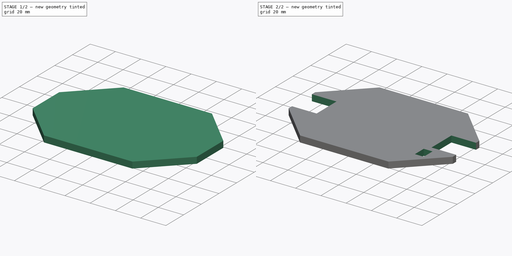
[diagram: build sequence overview — one tinted view per stage of 2, left to right]
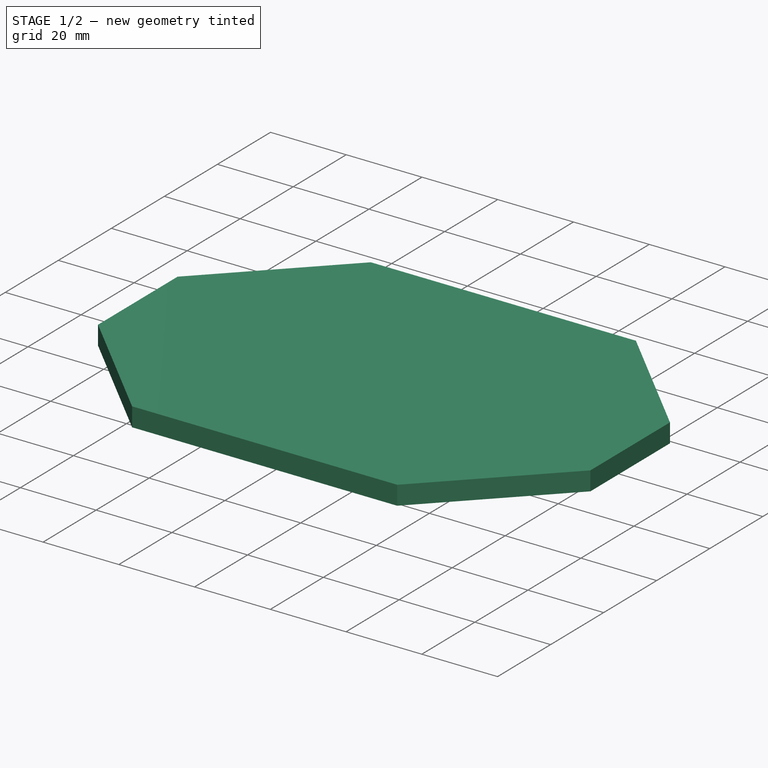
[diagram: stage 1 of 2 — iso view after this stage's code; geometry added in this stage tinted green]
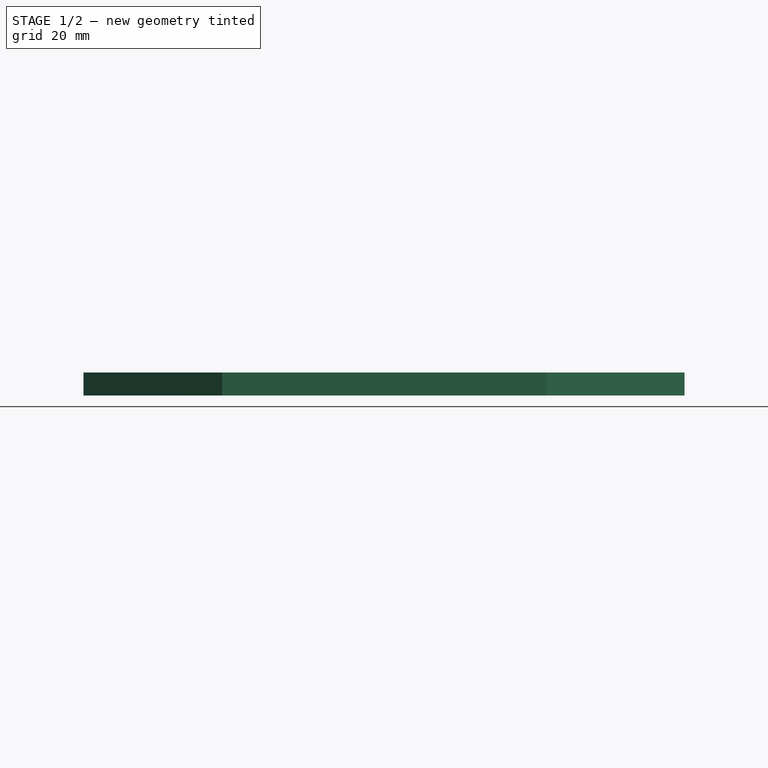
[diagram: stage 1 of 2 — front view after this stage's code; geometry added in this stage tinted green]
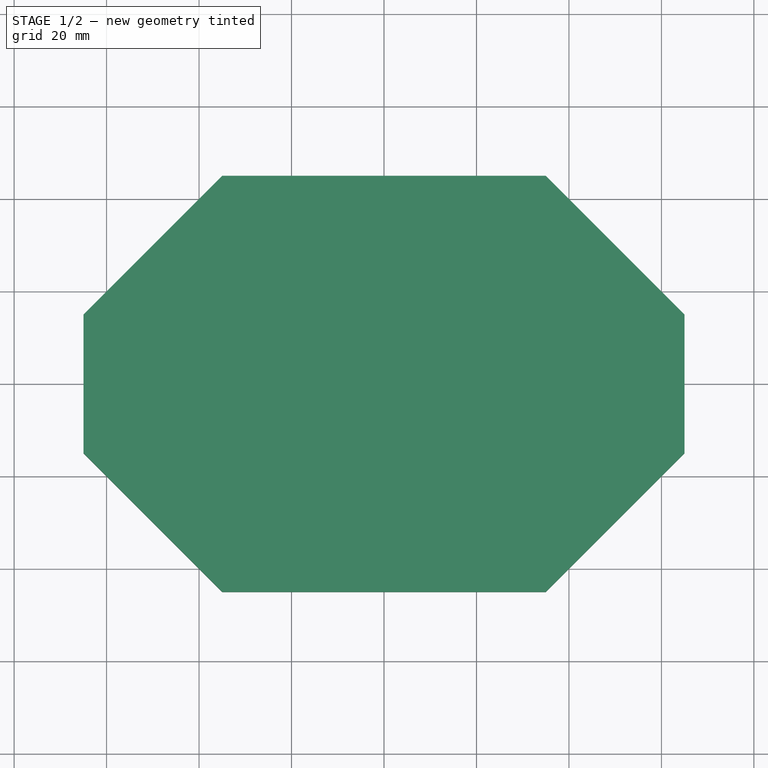
[diagram: stage 1 of 2 — top view after this stage's code; geometry added in this stage tinted green]
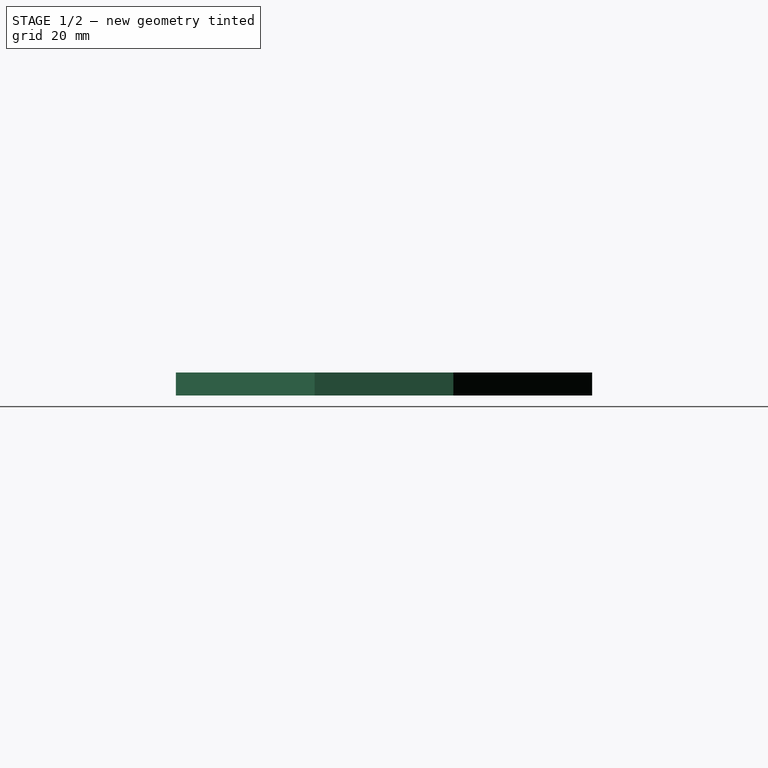
[diagram: stage 1 of 2 — right view after this stage's code; geometry added in this stage tinted green]
FCSTD DOCUMENT  (FreeCAD 0.21R33771 (Git))
Label: archivos_base_PenInv
License: All rights reserved
LicenseURL: https://en.wikipedia.org/wiki/All_rights_reserved
objects: Sketcher::SketchObject×3, PartDesign::Pocket×2, PartDesign::Pad×1, PartDesign::Chamfer×1, PartDesign::Body×1
note: 12 computed .brp shape members not serialized (recipe doc carries the construction recipe); baked Part::Feature solids carry a one-line shape summary decoded from their .brp

FEATURE [Sketcher::SketchObject] Sketch
  FullyConstrained = true
  MapMode = 5
  Support = -> [XY_Plane]
  sketch-geometry (4):
    g0: LineSegment StartX=-65 StartY=45 StartZ=0 EndX=65 EndY=45 EndZ=0
    g1: LineSegment StartX=65 StartY=45 StartZ=0 EndX=65 EndY=-45 EndZ=0
    g2: LineSegment StartX=65 StartY=-45 StartZ=0 EndX=-65 EndY=-45 EndZ=0
    g3: LineSegment StartX=-65 StartY=-45 StartZ=0 EndX=-65 EndY=45 EndZ=0
  constraints (12):
    c: Coincident(g0,g1)
    c: Coincident(g1,g2)
    c: Coincident(g2,g3)
    c: Coincident(g3,g0)
    c: Horizontal(g0)
    c: Horizontal(g2)
    c: Vertical(g1)
    c: Vertical(g3)
    c: Distance(g0,g0) = 130
    c: Distance(g0,g2) = 90
    c: Distance(g-1,g2) = 45
    c: Distance(g-1,g3) = 65
FEATURE [PartDesign::Pad] Pad
  Direction = (0,0,1)
  Length = 5
  Length2 = 10
  Profile = -> Sketch
  ReferenceAxis = -> Sketch [N_Axis]
  Type = 0
FEATURE [PartDesign::Chamfer] Chamfer
  Angle = 45
  Base = -> Pad [Edge8,Edge5,Edge2,Edge1]
  BaseFeature = -> Pad
  ChamferType = 0
  FlipDirection = false
  Size = 30
  Size2 = 1
  SupportTransform = false
  UseAllEdges = false
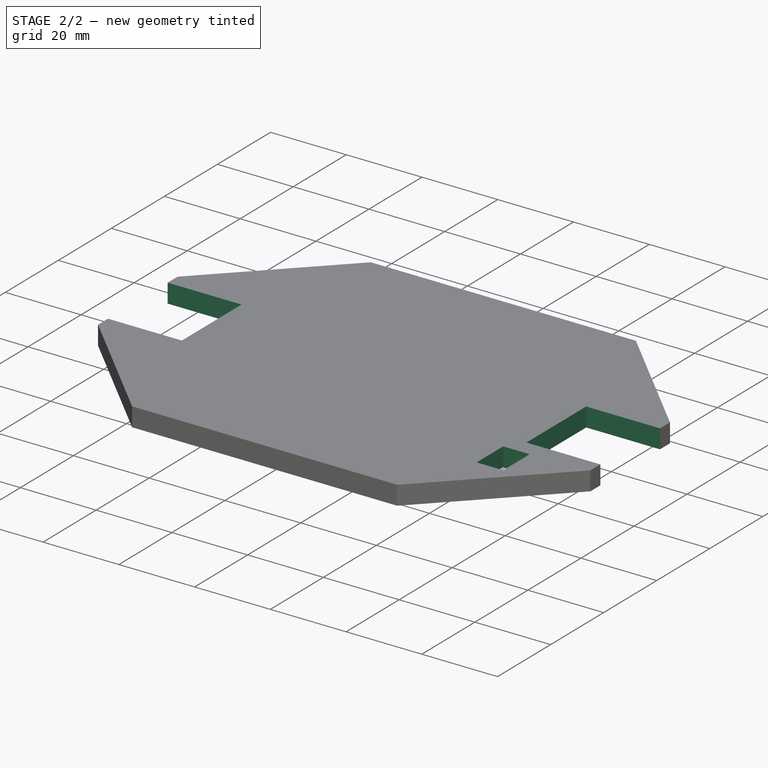
[diagram: stage 2 of 2 — iso view after this stage's code; geometry added in this stage tinted green]
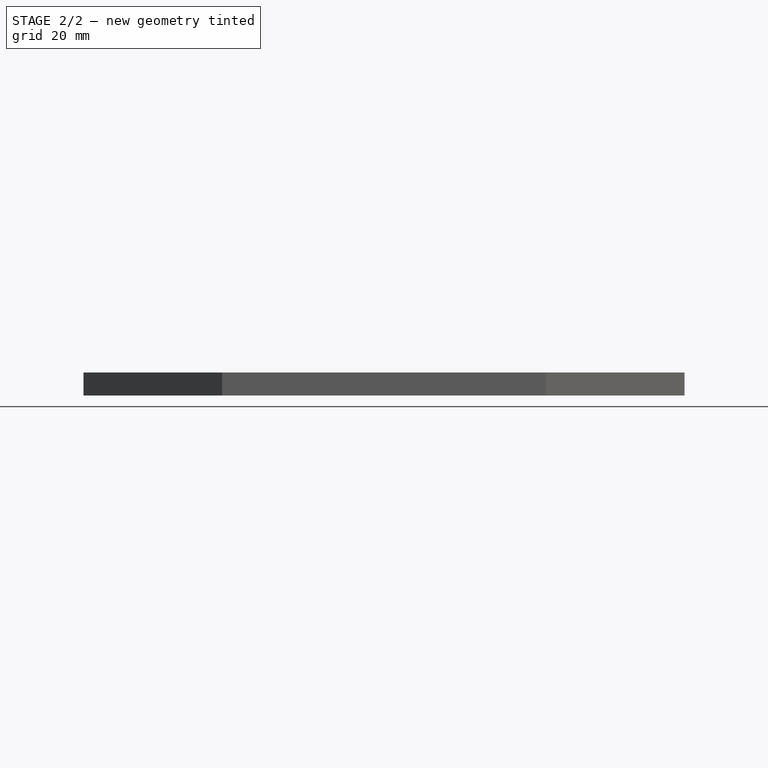
[diagram: stage 2 of 2 — front view after this stage's code; geometry added in this stage tinted green]
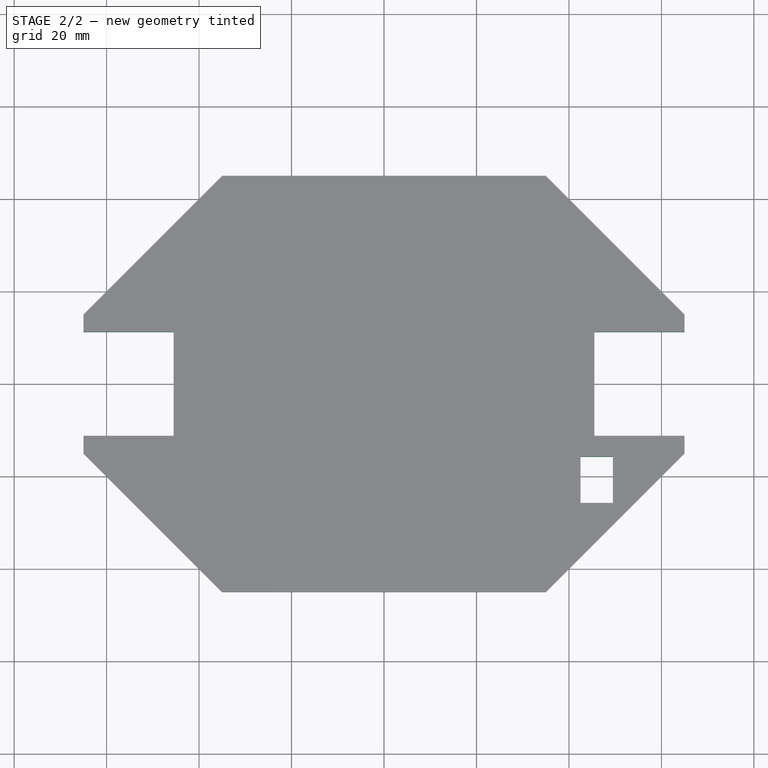
[diagram: stage 2 of 2 — top view after this stage's code; geometry added in this stage tinted green]
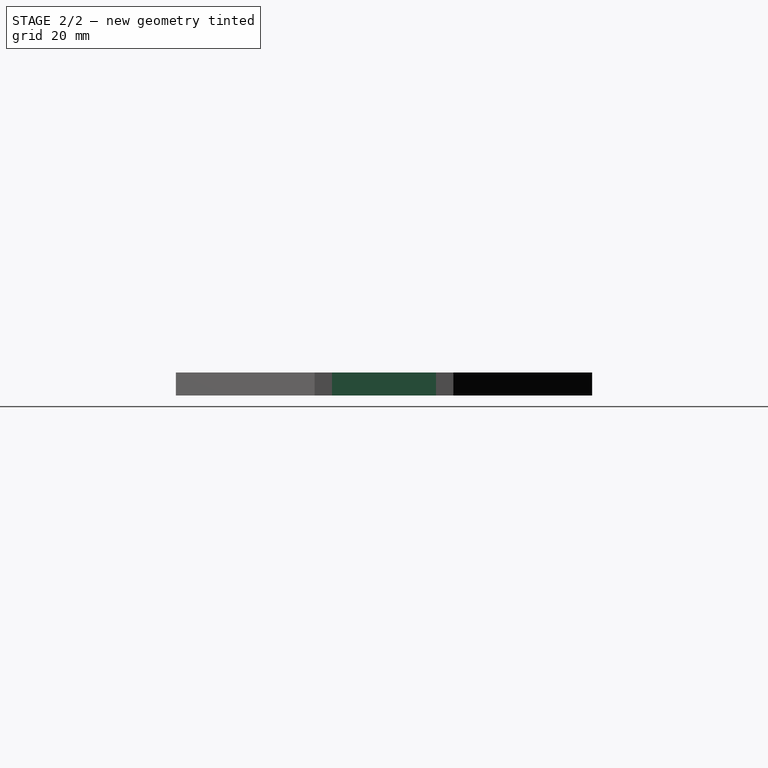
[diagram: stage 2 of 2 — right view after this stage's code; geometry added in this stage tinted green]
FEATURE [Sketcher::SketchObject] Sketch001
  ExternalGeometry = -> [Chamfer]
  FullyConstrained = true
  MapMode = 5
  Placement = pos=(0,0,5) rot=(0,0,1;0rad)
  Support = -> [Chamfer]
  sketch-geometry (16):
    g0: LineSegment StartX=-65 StartY=11.25 StartZ=0 EndX=-45.5 EndY=11.25 EndZ=0
    g1: LineSegment StartX=-45.5 StartY=11.25 StartZ=0 EndX=-45.5 EndY=-11.25 EndZ=0
    g2: LineSegment StartX=-45.5 StartY=-11.25 StartZ=0 EndX=-65 EndY=-11.25 EndZ=0
    g3: LineSegment StartX=-65 StartY=-11.25 StartZ=0 EndX=-65 EndY=11.25 EndZ=0
    g4: LineSegment StartX=45.5 StartY=11.25 StartZ=0 EndX=65 EndY=11.25 EndZ=0
    g5: LineSegment StartX=65 StartY=11.25 StartZ=0 EndX=65 EndY=-11.25 EndZ=0
    g6: LineSegment StartX=65 StartY=-11.25 StartZ=0 EndX=45.5 EndY=-11.25 EndZ=0
    g7: LineSegment StartX=45.5 StartY=-11.25 StartZ=0 EndX=45.5 EndY=11.25 EndZ=0
    g8: LineSegment StartX=45.5 StartY=11.25 StartZ=0 EndX=65 EndY=11.25 EndZ=0
    g9: LineSegment StartX=65 StartY=11.25 StartZ=0 EndX=65 EndY=-11.25 EndZ=0
    g10: LineSegment StartX=65 StartY=-11.25 StartZ=0 EndX=45.5 EndY=-11.25 EndZ=0
    g11: LineSegment StartX=45.5 StartY=-11.25 StartZ=0 EndX=45.5 EndY=11.25 EndZ=0
    g12: LineSegment StartX=-65 StartY=11.25 StartZ=0 EndX=-45.5 EndY=11.25 EndZ=0
    g13: LineSegment StartX=-45.5 StartY=11.25 StartZ=0 EndX=-45.5 EndY=-11.25 EndZ=0
    g14: LineSegment StartX=-45.5 StartY=-11.25 StartZ=0 EndX=-65 EndY=-11.25 EndZ=0
    g15: LineSegment StartX=-65 StartY=-11.25 StartZ=0 EndX=-65 EndY=11.25 EndZ=0
  constraints (44):
    c: Coincident(g0,g1)
    c: Coincident(g1,g2)
    c: Coincident(g2,g3)
    c: Coincident(g3,g0)
    c: Horizontal(g0)
    c: Horizontal(g2)
    c: Vertical(g1)
    c: Vertical(g3)
    c: PointOnObject(g0,g-3)
    c: Distance(g0) = 19.5
    c: Distance(g1) = 22.5
    c: Distance(g2,g-1) = 11.25
    c: Coincident(g4,g5)
    c: Coincident(g5,g6)
    c: Coincident(g6,g7)
    c: Coincident(g7,g4)
    c: Horizontal(g4)
    c: Horizontal(g6)
    c: Vertical(g5)
    c: Vertical(g7)
    c: PointOnObject(g5,g-7)
    c: Distance(g7) = 22.5
    c: Distance(g4) = 19.5
    c: Distance(g5,g-1) = 11.25
    c: Coincident(g8,g9)
    c: Coincident(g9,g10)
    c: Coincident(g10,g11)
    c: Coincident(g11,g8)
    c: Horizontal(g8)
    c: Horizontal(g10)
    c: Vertical(g9)
    c: Vertical(g11)
    c: Coincident(g8,g4)
    c: Coincident(g9,g5)
    c: Coincident(g12,g13)
    c: Coincident(g13,g14)
    c: Coincident(g14,g15)
    c: Coincident(g15,g12)
    c: Horizontal(g12)
    c: Horizontal(g14)
    c: Vertical(g13)
    c: Vertical(g15)
    c: Coincident(g12,g0)
    c: Coincident(g13,g1)
FEATURE [PartDesign::Pocket] Pocket
  BaseFeature = -> Chamfer
  Direction = (0,0,-1)
  Length = 5
  Length2 = 5
  Profile = -> Sketch001
  ReferenceAxis = -> Sketch001 [N_Axis]
  Type = 0
FEATURE [Sketcher::SketchObject] Sketch002
  FullyConstrained = false
  MapMode = 5
  Placement = pos=(0,0,5) rot=(0,0,1;0rad)
  Support = -> [Pocket]
  sketch-geometry (8):
    g0: LineSegment StartX=-36.5 StartY=29 StartZ=0 EndX=36.5 EndY=29 EndZ=0
    g1: LineSegment StartX=36.5 StartY=29 StartZ=0 EndX=36.5 EndY=-29 EndZ=0
    g2: LineSegment StartX=36.5 StartY=-29 StartZ=0 EndX=-36.5 EndY=-29 EndZ=0
    g3: LineSegment StartX=-36.5 StartY=-29 StartZ=0 EndX=-36.5 EndY=29 EndZ=0
    g4: LineSegment StartX=42.5 StartY=-15.7445 StartZ=0 EndX=49.5 EndY=-15.7445 EndZ=0
    g5: LineSegment StartX=49.5 StartY=-15.7445 StartZ=0 EndX=49.5 EndY=-25.7445 EndZ=0
    g6: LineSegment StartX=49.5 StartY=-25.7445 StartZ=0 EndX=42.5 EndY=-25.7445 EndZ=0
    g7: LineSegment StartX=42.5 StartY=-25.7445 StartZ=0 EndX=42.5 EndY=-15.7445 EndZ=0
  constraints (23):
    c: Coincident(g0,g1)
    c: Coincident(g1,g2)
    c: Coincident(g2,g3)
    c: Coincident(g3,g0)
    c: Horizontal(g0)
    c: Horizontal(g2)
    c: Vertical(g1)
    c: Vertical(g3)
    c: Distance(g0) = 73
    c: Distance(g1) = 58
    c: DistanceX(g-1,g1) = 36.5
    c: DistanceY(g2,g-1) = 29
    c: Coincident(g4,g5)
    c: Coincident(g5,g6)
    c: Coincident(g6,g7)
    c: Coincident(g7,g4)
    c: Horizontal(g4)
    c: Horizontal(g6)
    c: Vertical(g5)
    c: Vertical(g7)
    c: DistanceX(g4,g4) = 7
    c: DistanceY(g7,g7) = 10
    c: DistanceX(g1,g4) = 6
FEATURE [PartDesign::Pocket] Pocket001
  BaseFeature = -> Pocket
  Direction = (0,0,-1)
  Length = 5
  Length2 = 5
  Profile = -> Sketch002
  ReferenceAxis = -> Sketch002 [N_Axis]
  Type = 0
FEATURE [PartDesign::Body] Body  label="Cuerpo"
  Group = -> [Sketch,Pad,Chamfer,Sketch001,Pocket,Sketch002,Pocket001]
  Origin = -> Origin
  Tip = -> Pocket001
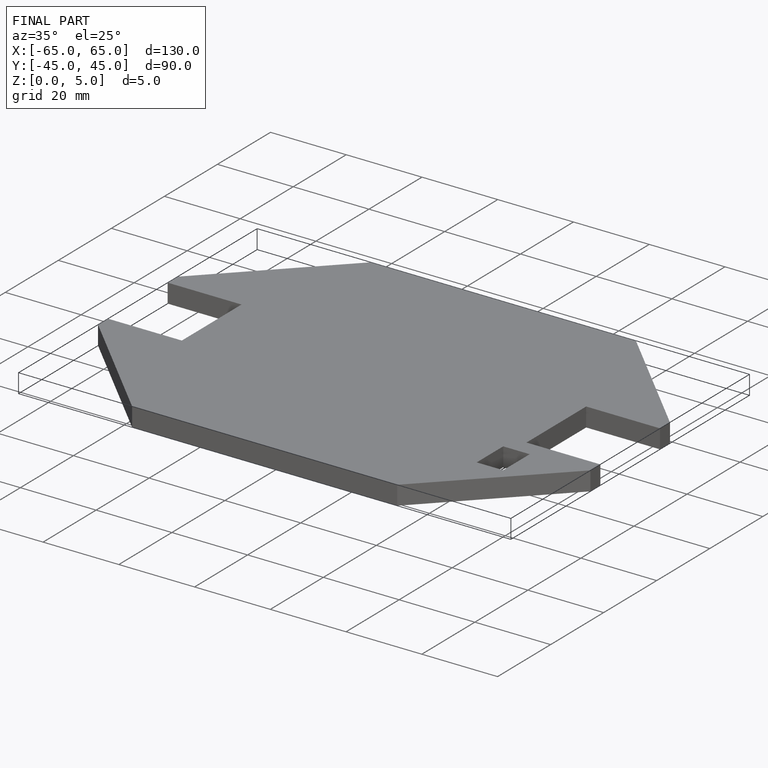
[diagram: finished part — iso view with bounding-box wireframe]
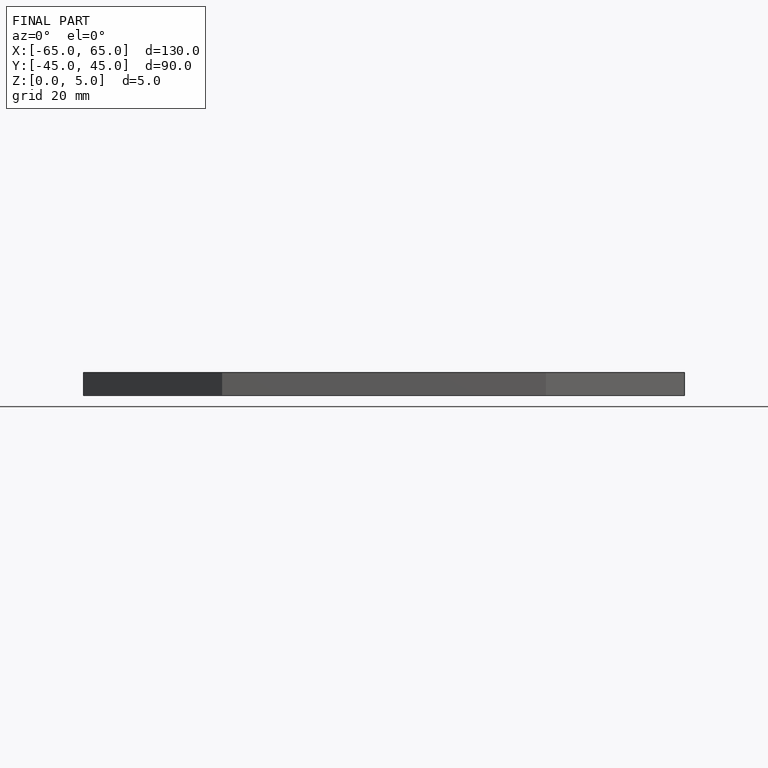
[diagram: finished part — front view with bounding-box wireframe]
